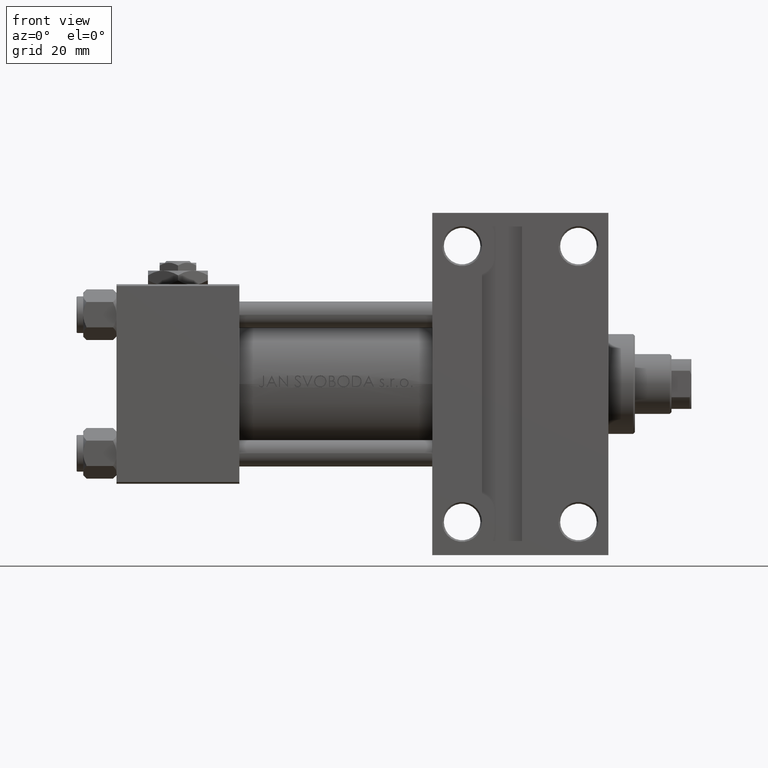
[diagram: clean part render]
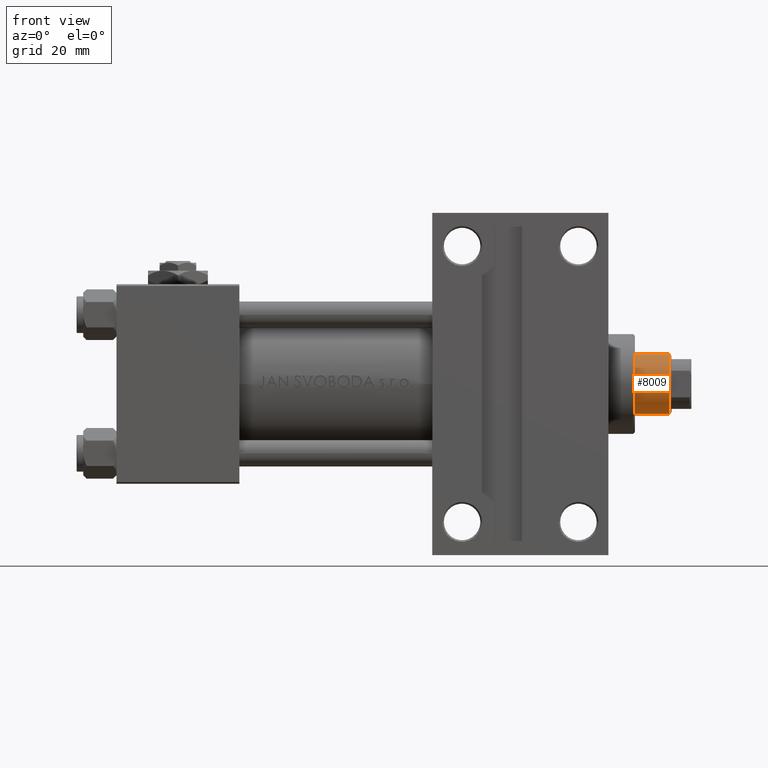
[diagram: same view with one face highlighted and labeled with its STEP entity id]
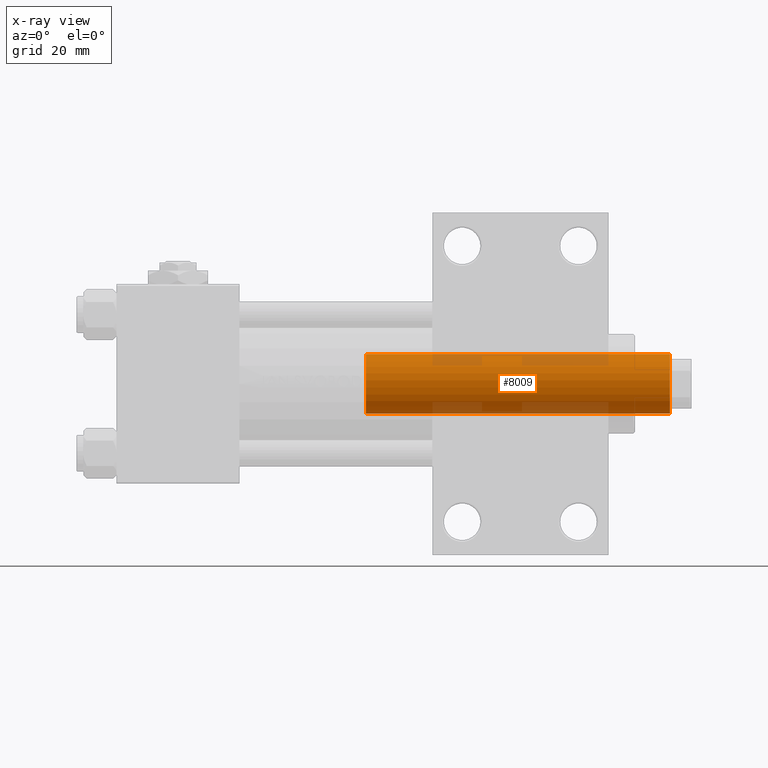
[diagram: x-ray of the same camera — body ghosted, the highlighted face saturated]
A machine part, front view. The second image highlights one B-rep face of the part: STEP entity #8009.
The next image is the same camera in x-ray: the body ghosted, the highlighted face saturated — about 18% of this face is hidden behind the body in this view.
In plain terms, the highlighted cylindrical surface (edge-blend (fillet) strip) has radius 9 mm, axis along (-1, 0, 0).
Its self-contained STEP definition (entity closure, byte-faithful):
#266 = CARTESIAN_POINT ( 'NONE',  ( 0.000000000000000000, 0.000000000000000000, 129.5000000000000000 ) ) ;
#1778 = VERTEX_POINT ( 'NONE', #18776 ) ;
#2234 = DIRECTION ( 'NONE',  ( 1.000000000000000000, 0.000000000000000000, 0.000000000000000000 ) ) ;
#2331 = AXIS2_PLACEMENT_3D ( 'NONE', #14522, #41977, #22203 ) ;
#5475 = AXIS2_PLACEMENT_3D ( 'NONE', #9180, #10446, #2234 ) ;
#6015 = AXIS2_PLACEMENT_3D ( 'NONE', #266, #31562, #47233 ) ;
#6557 = FACE_OUTER_BOUND ( 'NONE', #41726, .T. ) ;
#7141 = DIRECTION ( 'NONE',  ( -0.000000000000000000, -0.000000000000000000, -1.000000000000000000 ) ) ;
#8009 = ADVANCED_FACE ( 'NONE', ( #6557 ), #37631, .T. ) ;
#8705 = DIRECTION ( 'NONE',  ( -0.000000000000000000, -0.000000000000000000, -1.000000000000000000 ) ) ;
#9180 = CARTESIAN_POINT ( 'NONE',  ( 0.000000000000000000, 0.000000000000000000, 38.00000000000000000 ) ) ;
#10446 = DIRECTION ( 'NONE',  ( 0.000000000000000000, 0.000000000000000000, 1.000000000000000000 ) ) ;
#13883 = ORIENTED_EDGE ( 'NONE', *, *, #42523, .T. ) ;
#14240 = CIRCLE ( 'NONE', #6015, 9.000000000000000000 ) ;
#14522 = CARTESIAN_POINT ( 'NONE',  ( 0.000000000000000000, 0.000000000000000000, 130.0000000000000000 ) ) ;
#15039 = VECTOR ( 'NONE', #8705, 1000.000000000000000 ) ;
#16035 = ORIENTED_EDGE ( 'NONE', *, *, #34122, .T. ) ;
#16169 = LINE ( 'NONE', #43870, #15039 ) ;
#18776 = CARTESIAN_POINT ( 'NONE',  ( -9.000000000000000000, 0.000000000000000000, 129.5000000000000000 ) ) ;
#18955 = LINE ( 'NONE', #19448, #31926 ) ;
#19448 = CARTESIAN_POINT ( 'NONE',  ( -9.000000000000000000, 0.000000000000000000, 130.0000000000000000 ) ) ;
#21999 = EDGE_CURVE ( 'NONE', #1778, #37339, #18955, .T. ) ;
#22203 = DIRECTION ( 'NONE',  ( -1.000000000000000000, 0.000000000000000000, 0.000000000000000000 ) ) ;
#24174 = VERTEX_POINT ( 'NONE', #28697 ) ;
#28697 = CARTESIAN_POINT ( 'NONE',  ( 9.000000000000000000, 1.102182119232617714E-15, 129.5000000000000000 ) ) ;
#29215 = CIRCLE ( 'NONE', #5475, 9.000000000000000000 ) ;
#31562 = DIRECTION ( 'NONE',  ( 0.000000000000000000, 0.000000000000000000, -1.000000000000000000 ) ) ;
#31926 = VECTOR ( 'NONE', #7141, 1000.000000000000000 ) ;
#34122 = EDGE_CURVE ( 'NONE', #24174, #36586, #16169, .T. ) ;
#34223 = ORIENTED_EDGE ( 'NONE', *, *, #21999, .F. ) ;
#34546 = CARTESIAN_POINT ( 'NONE',  ( -9.000000000000000000, 0.000000000000000000, 38.00000000000000000 ) ) ;
#35015 = EDGE_CURVE ( 'NONE', #1778, #24174, #14240, .T. ) ;
#36586 = VERTEX_POINT ( 'NONE', #47100 ) ;
#37339 = VERTEX_POINT ( 'NONE', #34546 ) ;
#37631 = CYLINDRICAL_SURFACE ( 'NONE', #2331, 9.000000000000000000 ) ;
#41726 = EDGE_LOOP ( 'NONE', ( #48116, #16035, #13883, #34223 ) ) ;
#41977 = DIRECTION ( 'NONE',  ( -0.000000000000000000, -0.000000000000000000, -1.000000000000000000 ) ) ;
#42523 = EDGE_CURVE ( 'NONE', #36586, #37339, #29215, .T. ) ;
#43870 = CARTESIAN_POINT ( 'NONE',  ( 9.000000000000000000, 1.102182119232617714E-15, 130.0000000000000000 ) ) ;
#47100 = CARTESIAN_POINT ( 'NONE',  ( 9.000000000000000000, 1.102182119232617714E-15, 38.00000000000000000 ) ) ;
#47233 = DIRECTION ( 'NONE',  ( 1.000000000000000000, 0.000000000000000000, 0.000000000000000000 ) ) ;
#48116 = ORIENTED_EDGE ( 'NONE', *, *, #35015, .T. ) ;